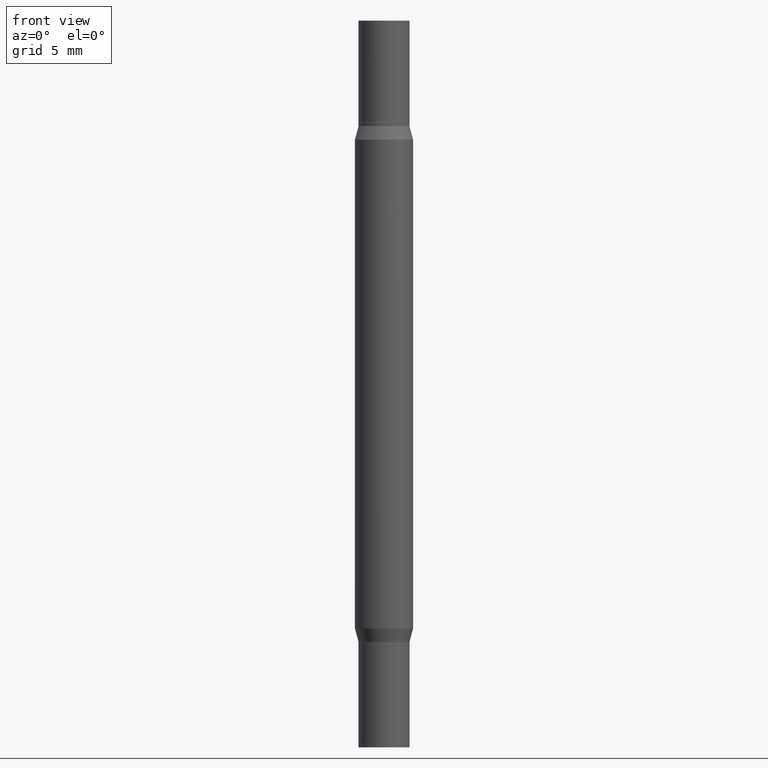
[diagram: clean part render]
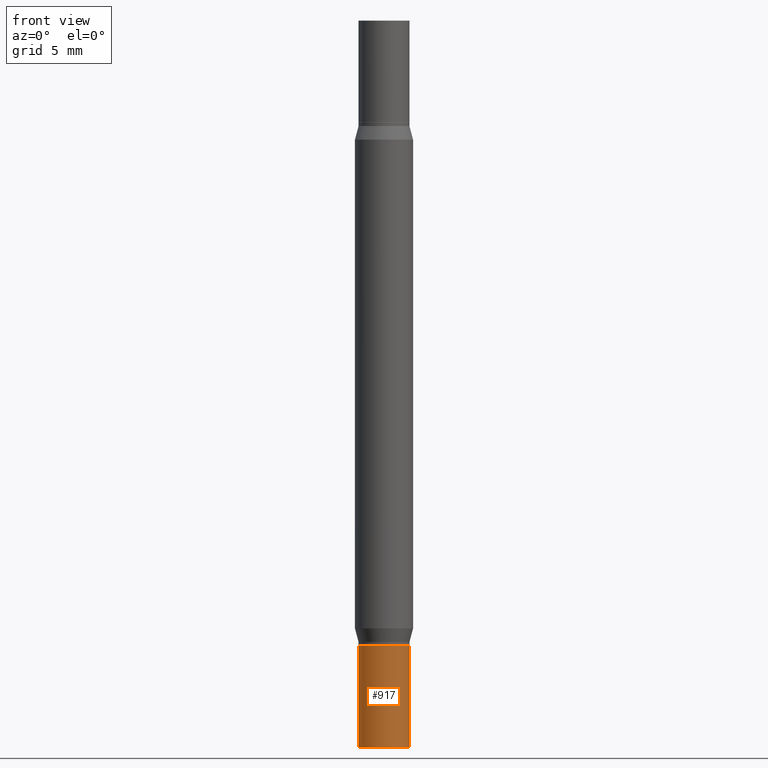
[diagram: same view with one face highlighted and labeled with its STEP entity id]
A machine part, front view. The second image highlights one B-rep face of the part: STEP entity #917.
In plain terms, the highlighted cylindrical surface (edge-blend (fillet) strip) has radius 1.7501 mm, axis along (-0, 0, 1).
Its self-contained STEP definition (entity closure, byte-faithful):
#44 = DIRECTION ( 'NONE',  ( -2.445468806185136877E-29, 3.491481338843145188E-15, 1.000000000000000000 ) ) ;
#83 = CARTESIAN_POINT ( 'NONE',  ( 0.000000000000000000, 0.000000000000000000, 0.000000000000000000 ) ) ;
#114 = AXIS2_PLACEMENT_3D ( 'NONE', #741, #371, #905 ) ;
#165 = EDGE_LOOP ( 'NONE', ( #542, #892, #805, #405 ) ) ;
#172 = CARTESIAN_POINT ( 'NONE',  ( -0.06890000000000007230, 4.895639449387095418E-16, -3.389146277185633520E-30 ) ) ;
#195 = VERTEX_POINT ( 'NONE', #358 ) ;
#207 = EDGE_CURVE ( 'NONE', #376, #586, #585, .T. ) ;
#249 = CARTESIAN_POINT ( 'NONE',  ( 0.06890000000000007230, -7.354107144005315446E-15, -1.968500000000000139 ) ) ;
#259 = EDGE_CURVE ( 'NONE', #195, #952, #682, .T. ) ;
#283 = VECTOR ( 'NONE', #484, 39.37007874015748143 ) ;
#286 = CARTESIAN_POINT ( 'NONE',  ( 0.06890000000000007230, -6.391854887020144024E-15, -1.692899999999999849 ) ) ;
#313 = VECTOR ( 'NONE', #44, 39.37007874015748143 ) ;
#358 = CARTESIAN_POINT ( 'NONE',  ( -0.06890000000000007230, -5.902290942081436849E-15, -1.968500000000000139 ) ) ;
#367 = AXIS2_PLACEMENT_3D ( 'NONE', #83, #675, #808 ) ;
#371 = DIRECTION ( 'NONE',  ( -2.445468806185136597E-29, 3.491481338843145583E-15, 1.000000000000000000 ) ) ;
#376 = VERTEX_POINT ( 'NONE', #418 ) ;
#405 = ORIENTED_EDGE ( 'NONE', *, *, #207, .F. ) ;
#418 = CARTESIAN_POINT ( 'NONE',  ( -0.06890000000000007230, -5.902290942081436849E-15, -1.692899999999999849 ) ) ;
#436 = LINE ( 'NONE', #736, #283 ) ;
#450 = CYLINDRICAL_SURFACE ( 'NONE', #367, 0.06890000000000007230 ) ;
#478 = DIRECTION ( 'NONE',  ( 1.000000000000000000, -6.982962677686258822E-15, 0.000000000000000000 ) ) ;
#484 = DIRECTION ( 'NONE',  ( -2.445468806185136877E-29, 3.491481338843145188E-15, 1.000000000000000000 ) ) ;
#542 = ORIENTED_EDGE ( 'NONE', *, *, #967, .F. ) ;
#585 = CIRCLE ( 'NONE', #795, 0.06890000000000007230 ) ;
#586 = VERTEX_POINT ( 'NONE', #286 ) ;
#656 = CARTESIAN_POINT ( 'NONE',  ( 4.139934141990817236E-29, -5.910728758527560286E-15, -1.692899999999999849 ) ) ;
#661 = DIRECTION ( 'NONE',  ( -2.445468806185136597E-29, 3.491481338843145583E-15, 1.000000000000000000 ) ) ;
#670 = EDGE_CURVE ( 'NONE', #952, #586, #436, .T. ) ;
#675 = DIRECTION ( 'NONE',  ( -2.445468806185136597E-29, 3.491481338843145583E-15, 1.000000000000000000 ) ) ;
#682 = CIRCLE ( 'NONE', #114, 0.06890000000000007230 ) ;
#700 = LINE ( 'NONE', #172, #313 ) ;
#736 = CARTESIAN_POINT ( 'NONE',  ( 0.06890000000000007230, -4.811261284925842315E-16, 3.359685798523402771E-30 ) ) ;
#741 = CARTESIAN_POINT ( 'NONE',  ( 4.813905344975441835E-29, -6.872981015512731707E-15, -1.968500000000000139 ) ) ;
#749 = FACE_OUTER_BOUND ( 'NONE', #165, .T. ) ;
#795 = AXIS2_PLACEMENT_3D ( 'NONE', #656, #661, #478 ) ;
#805 = ORIENTED_EDGE ( 'NONE', *, *, #670, .T. ) ;
#808 = DIRECTION ( 'NONE',  ( 1.000000000000000000, -6.982962677686265922E-15, 4.876176775795935232E-29 ) ) ;
#892 = ORIENTED_EDGE ( 'NONE', *, *, #259, .T. ) ;
#905 = DIRECTION ( 'NONE',  ( 1.000000000000000000, -6.982962677686258822E-15, 0.000000000000000000 ) ) ;
#917 = ADVANCED_FACE ( 'NONE', ( #749 ), #450, .T. ) ;
#952 = VERTEX_POINT ( 'NONE', #249 ) ;
#967 = EDGE_CURVE ( 'NONE', #195, #376, #700, .T. ) ;